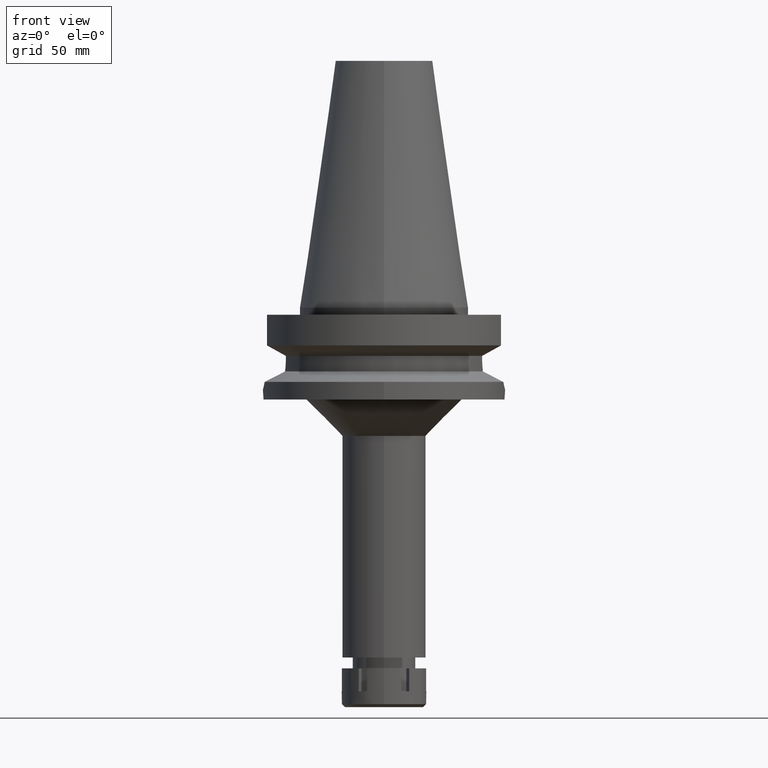
[diagram: clean part render]
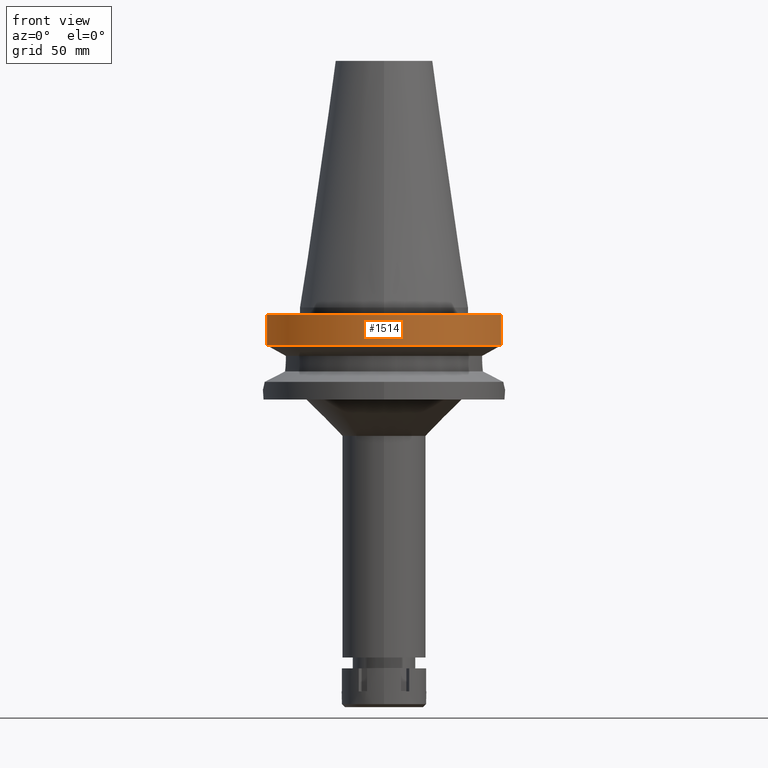
[diagram: same view with one face highlighted and labeled with its STEP entity id]
A machine part, front view. The second image highlights one B-rep face of the part: STEP entity #1514.
In plain terms, the highlighted cylindrical surface (partial cylindrical patch) has radius 50 mm, axis along (0, 0, -1).
Its self-contained STEP definition (entity closure, byte-faithful):
#112 = DIRECTION ( 'NONE',  ( 0.0000000000000000000, -1.000000000000000000, 0.0000000000000000000 ) ) ;
#340 = LINE ( 'NONE', #1192, #2006 ) ;
#412 = CARTESIAN_POINT ( 'NONE',  ( 48.32057015392000210, -12.84999999999999964, -3.000000000000000000 ) ) ;
#419 = DIRECTION ( 'NONE',  ( 0.0000000000000000000, -1.000000000000000000, 0.0000000000000000000 ) ) ;
#463 = AXIS2_PLACEMENT_3D ( 'NONE', #1799, #3490, #1783 ) ;
#641 = EDGE_CURVE ( 'NONE', #3153, #3417, #2614, .T. ) ;
#648 = ORIENTED_EDGE ( 'NONE', *, *, #641, .T. ) ;
#830 = ORIENTED_EDGE ( 'NONE', *, *, #1416, .T. ) ;
#913 = DIRECTION ( 'NONE',  ( -8.103519278860602309E-08, -3.047209459813850567E-07, -0.9999999999999503730 ) ) ;
#942 = AXIS2_PLACEMENT_3D ( 'NONE', #2111, #3527, #419 ) ;
#1113 = CARTESIAN_POINT ( 'NONE',  ( -48.32056912814000071, -12.85000385727999905, -15.66265768250999990 ) ) ;
#1139 = DIRECTION ( 'NONE',  ( -8.100800697240604101E-08, 3.046187202870850882E-07, 0.9999999999999503730 ) ) ;
#1192 = CARTESIAN_POINT ( 'NONE',  ( 48.32057015392000210, -12.84999999999999964, -3.000000000000000000 ) ) ;
#1236 = FACE_OUTER_BOUND ( 'NONE', #1766, .T. ) ;
#1282 = VECTOR ( 'NONE', #1139, 1000.000000000000114 ) ;
#1416 = EDGE_CURVE ( 'NONE', #2537, #2444, #1485, .T. ) ;
#1485 = CIRCLE ( 'NONE', #463, 50.00000000000000000 ) ;
#1514 = ADVANCED_FACE ( 'NONE', ( #1236 ), #3542, .T. ) ;
#1658 = LINE ( 'NONE', #3637, #1282 ) ;
#1766 = EDGE_LOOP ( 'NONE', ( #3500, #648, #2436, #830 ) ) ;
#1783 = DIRECTION ( 'NONE',  ( 0.0000000000000000000, -1.000000000000000000, 0.0000000000000000000 ) ) ;
#1799 = CARTESIAN_POINT ( 'NONE',  ( 0.0000000000000000000, 2.629806536488999751E-14, -3.000000000000000000 ) ) ;
#2006 = VECTOR ( 'NONE', #913, 999.9999999999998863 ) ;
#2111 = CARTESIAN_POINT ( 'NONE',  ( 0.0000000000000000000, 2.629806536488999751E-14, 114.7399999999999949 ) ) ;
#2117 = EDGE_CURVE ( 'NONE', #3153, #2444, #1658, .T. ) ;
#2121 = CARTESIAN_POINT ( 'NONE',  ( 0.0000000000000000000, 1.006319759053999930E-14, -15.66269223573000069 ) ) ;
#2162 = CARTESIAN_POINT ( 'NONE',  ( 48.32057015392000210, -12.84999999999999964, -15.66269223573000069 ) ) ;
#2431 = AXIS2_PLACEMENT_3D ( 'NONE', #2121, #2712, #112 ) ;
#2436 = ORIENTED_EDGE ( 'NONE', *, *, #3185, .F. ) ;
#2444 = VERTEX_POINT ( 'NONE', #2653 ) ;
#2537 = VERTEX_POINT ( 'NONE', #412 ) ;
#2614 = CIRCLE ( 'NONE', #2431, 50.00000000000000000 ) ;
#2653 = CARTESIAN_POINT ( 'NONE',  ( -48.32057015392000210, -12.84999999999999964, -3.000000000000000000 ) ) ;
#2712 = DIRECTION ( 'NONE',  ( 0.0000000000000000000, 0.0000000000000000000, 1.000000000000000000 ) ) ;
#3153 = VERTEX_POINT ( 'NONE', #1113 ) ;
#3185 = EDGE_CURVE ( 'NONE', #2537, #3417, #340, .T. ) ;
#3417 = VERTEX_POINT ( 'NONE', #2162 ) ;
#3490 = DIRECTION ( 'NONE',  ( 0.0000000000000000000, 0.0000000000000000000, -1.000000000000000000 ) ) ;
#3500 = ORIENTED_EDGE ( 'NONE', *, *, #2117, .F. ) ;
#3527 = DIRECTION ( 'NONE',  ( 0.0000000000000000000, 0.0000000000000000000, -1.000000000000000000 ) ) ;
#3542 = CYLINDRICAL_SURFACE ( 'NONE', #942, 50.00000000000000000 ) ;
#3637 = CARTESIAN_POINT ( 'NONE',  ( -48.32056912814000071, -12.85000385727999905, -15.66265768250999990 ) ) ;